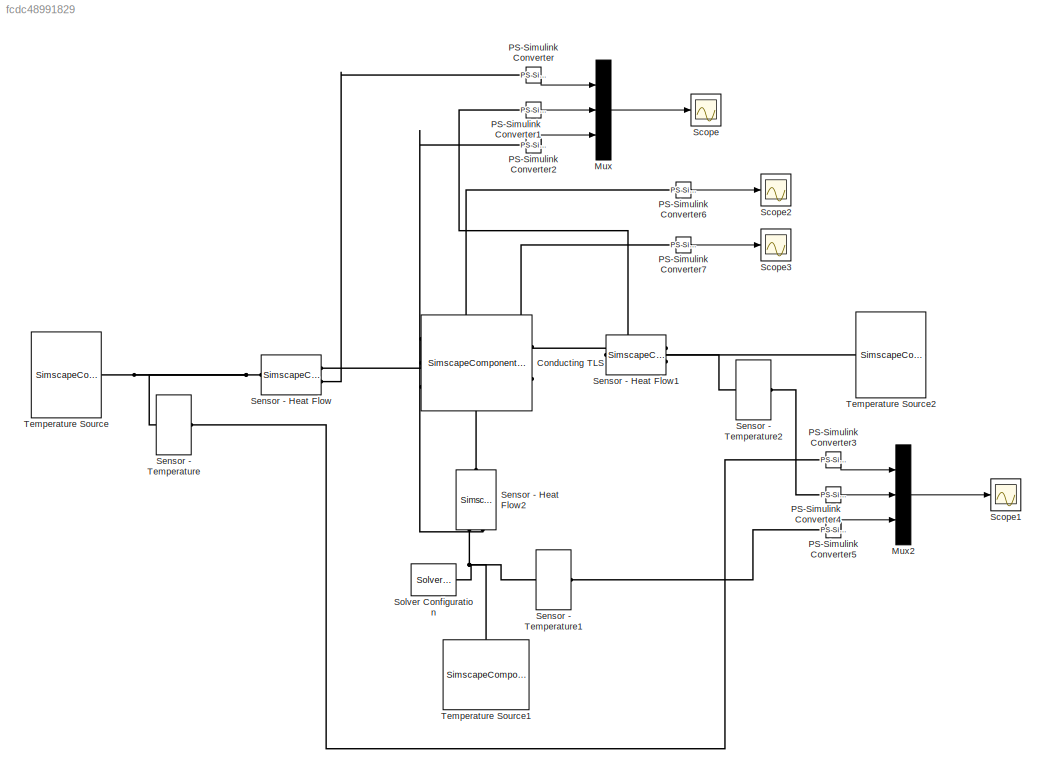
MODEL slx_fcdc48991829
KIND model
CONFIG AbsTol = auto
CONFIG EnableMultiTasking = off
CONFIG FixedStep = auto
CONFIG MaxStep = auto
CONFIG MinStep = auto
CONFIG RelTol = 1e-3
CONFIG SampleTimeConstraint = Unconstrained
CONFIG SolverName = VariableStepAuto
CONFIG StartTime = 0.0
CONFIG StopTime = 1000.0
BLOCK [SimscapeComponentBlock] Conducting TLS
  ClassName = conducting_TLS
  ComponentPath = conducting_TLS
  ComponentVariantNames = ["conducting_TLS"]
  ComponentVariants = ["conducting_TLS"]
  CopyFcn = simscape.engine.sli.internal.componentblockcallback(gcbh,'COPY')
  InternalSimscapePortConfiguration = {"Bottom":[{"id":"gnd","label":"","type":"quantum_thermal"}],"Left":[{"id":"b1","label":"B1","type":"quantum_thermal"}],"Right":[{"id":"b2","label":"B2","type":"quantum_thermal"}],"Top":[{"id":"diag","label":"dia","type":"output"},{"id":"ofdiag","label":"ofdia","type":"output"}]}
  J1 = 0
  J1_nominal_specify = off
  J1_nominal_unit = 1
  J1_nominal_value = 1
  J1_priority = None
  J1_specify = off
  J1_unit = 1
  J2 = 0
  J2_nominal_specify = off
  J2_nominal_unit = 1
  J2_nominal_value = 1
  J2_priority = None
  J2_specify = off
  J2_unit = 1
  MaskType = Conducting TLS
  Ports = [0, 0, 0, 0, 0, 3, 2]
  PreCopyFcn = simscape.engine.sli.internal.componentblockcallback(gcbh,'PRECOPY')
  PreDeleteFcn = simscape.engine.sli.internal.componentblockcallback(gcbh,'PREDELETE')
  SchemaVersion = 1
  SourceFile = conducting_TLS
  T1 = 0.2
  T1_nominal_specify = off
  T1_nominal_unit = 1
  T1_nominal_value = 1
  T1_priority = None
  T1_specify = off
  T1_unit = 1
  T2 = 0.2
  T2_nominal_specify = off
  T2_nominal_unit = 1
  T2_nominal_value = 1
  T2_priority = None
  T2_specify = off
  T2_unit = 1
  k1 = 0.01
  k1_conf = compiletime
  k1_unit = 1
  k2 = 0.01
  k2_conf = compiletime
  k2_unit = 1
  p11 = 0.5
  p11_nominal_specify = off
  p11_nominal_unit = 1
  p11_nominal_value = 1
  p11_priority = High
  p11_specify = off
  p11_unit = 1
  p22 = 0.5
  p22_nominal_specify = off
  p22_nominal_unit = 1
  p22_nominal_value = 1
  p22_priority = High
  p22_specify = off
  p22_unit = 1
  w = 1
  w_conf = compiletime
  w_unit = 1
BLOCK [Mux] Mux
  DisplayOption = bar
  Inputs = 3
  Ports = [3, 1]
BLOCK [Mux] Mux2
  DisplayOption = bar
  Inputs = 3
  Ports = [3, 1]
BLOCK [Reference] PS-Simulink Converter  REF=nesl_utility/PS-Simulink
Converter
  Ports = [0, 1, 0, 0, 0, 1]
  SourceBlock = nesl_utility/PS-Simulink\nConverter
  SourceProductBaseCode = SS,PW,VE
  SourceType = PS-Simulink\nConverter
BLOCK [Reference] PS-Simulink Converter1  REF=nesl_utility/PS-Simulink
Converter
  Ports = [0, 1, 0, 0, 0, 1]
  SourceBlock = nesl_utility/PS-Simulink\nConverter
  SourceProductBaseCode = SS,PW,VE
  SourceType = PS-Simulink\nConverter
BLOCK [Reference] PS-Simulink Converter2  REF=nesl_utility/PS-Simulink
Converter
  Ports = [0, 1, 0, 0, 0, 1]
  SourceBlock = nesl_utility/PS-Simulink\nConverter
  SourceProductBaseCode = SS,PW,VE
  SourceType = PS-Simulink\nConverter
BLOCK [Reference] PS-Simulink Converter3  REF=nesl_utility/PS-Simulink
Converter
  Ports = [0, 1, 0, 0, 0, 1]
  SourceBlock = nesl_utility/PS-Simulink\nConverter
  SourceProductBaseCode = SS,PW,VE
  SourceType = PS-Simulink\nConverter
BLOCK [Reference] PS-Simulink Converter4  REF=nesl_utility/PS-Simulink
Converter
  Ports = [0, 1, 0, 0, 0, 1]
  SourceBlock = nesl_utility/PS-Simulink\nConverter
  SourceProductBaseCode = SS,PW,VE
  SourceType = PS-Simulink\nConverter
BLOCK [Reference] PS-Simulink Converter5  REF=nesl_utility/PS-Simulink
Converter
  Ports = [0, 1, 0, 0, 0, 1]
  SourceBlock = nesl_utility/PS-Simulink\nConverter
  SourceProductBaseCode = SS,PW,VE
  SourceType = PS-Simulink\nConverter
BLOCK [Reference] PS-Simulink Converter6  REF=nesl_utility/PS-Simulink
Converter
  Ports = [0, 1, 0, 0, 0, 1]
  SourceBlock = nesl_utility/PS-Simulink\nConverter
  SourceProductBaseCode = SS,PW,VE
  SourceType = PS-Simulink\nConverter
BLOCK [Reference] PS-Simulink Converter7  REF=nesl_utility/PS-Simulink
Converter
  Ports = [0, 1, 0, 0, 0, 1]
  SourceBlock = nesl_utility/PS-Simulink\nConverter
  SourceProductBaseCode = SS,PW,VE
  SourceType = PS-Simulink\nConverter
BLOCK [Scope] Scope
  Floating = off
  NumInputPorts = 1
  Ports = [1]
  ScopeSpecificationString = Simulink.scopes.TimeScopeBlockCfg('CurrentConfiguration', extmgr.ConfigurationSet(extmgr.Configuration('Core','General UI',true),extmgr.Configuration('Core','Source UI',true),extmgr.Configuration('Sources','WiredSimulink',true),extmgr.Configuration('Visuals','Time Domain',true,'SerializedDisplays',{struct('MinYLimReal','-0.00049','MaxYLimReal','0.0002','YLabelReal','','MinYLimMag','0.00000','MaxYL...<+1821ch>
BLOCK [Scope] Scope1
  Floating = off
  NumInputPorts = 1
  Ports = [1]
  ScopeSpecificationString = Simulink.scopes.TimeScopeBlockCfg('CurrentConfiguration', extmgr.ConfigurationSet(extmgr.Configuration('Core','General UI',true),extmgr.Configuration('Core','Source UI',true),extmgr.Configuration('Sources','WiredSimulink',true,'DataLoggingVariableName','ScopeData1'),extmgr.Configuration('Visuals','Time Domain',true,'SerializedDisplays',{struct('MinYLimReal','-0.025','MaxYLimReal','0.225','YLabelRe...<+1449ch>
BLOCK [Scope] Scope2
  Floating = off
  NumInputPorts = 1
  Ports = [1]
  ScopeSpecificationString = Simulink.scopes.TimeScopeBlockCfg('CurrentConfiguration', extmgr.ConfigurationSet(extmgr.Configuration('Core','General UI',true),extmgr.Configuration('Core','Source UI',true),extmgr.Configuration('Sources','WiredSimulink',true,'DataLoggingVariableName','ScopeData2'),extmgr.Configuration('Visuals','Time Domain',true,'SerializedDisplays',{struct('MinYLimReal','-0.12079','MaxYLimReal','1.12079','YLab...<+1464ch>
BLOCK [Scope] Scope3
  Floating = off
  NumInputPorts = 1
  Ports = [1]
  ScopeSpecificationString = Simulink.scopes.TimeScopeBlockCfg('CurrentConfiguration', extmgr.ConfigurationSet(extmgr.Configuration('Core','General UI',true),extmgr.Configuration('Core','Source UI',true),extmgr.Configuration('Sources','WiredSimulink',true,'DataLoggingVariableName','ScopeData3'),extmgr.Configuration('Visuals','Time Domain',true,'SerializedDisplays',{struct('MinYLimReal','-1.00000','MaxYLimReal','1.00000','YLab...<+1409ch>
BLOCK [SimscapeComponentBlock] Sensor - Heat Flow
  ClassName = sensor_heat_flow
  ComponentPath = sensor_heat_flow
  ComponentVariantNames = ["sensor_heat_flow"]
  ComponentVariants = ["sensor_heat_flow"]
  CopyFcn = simscape.engine.sli.internal.componentblockcallback(gcbh,'COPY')
  InternalSimscapePortConfiguration = {"Bottom":[],"Left":[{"id":"inp","label":"","type":"quantum_thermal"}],"Right":[{"id":"out","label":"","type":"quantum_thermal"},{"id":"sense","label":"","type":"output"}],"Top":[]}  <repeated x3 — deduplicated; at blocks: Sensor - Heat Flow, Sensor - Heat Flow1, Sensor - Heat Flow2>
  J = 0
  J_nominal_specify = off
  J_nominal_unit = 1
  J_nominal_value = 1
  J_priority = None
  J_specify = off
  J_unit = 1
  MaskType = Heat flow rate sensor
  Ports = [0, 0, 0, 0, 0, 1, 2]
  PreCopyFcn = simscape.engine.sli.internal.componentblockcallback(gcbh,'PRECOPY')
  PreDeleteFcn = simscape.engine.sli.internal.componentblockcallback(gcbh,'PREDELETE')
  SchemaVersion = 1
  SourceFile = sensor_heat_flow
BLOCK [SimscapeComponentBlock] Sensor - Heat Flow1
  ClassName = sensor_heat_flow
  ComponentPath = sensor_heat_flow
  ComponentVariantNames = ["sensor_heat_flow"]
  ComponentVariants = ["sensor_heat_flow"]
  CopyFcn = simscape.engine.sli.internal.componentblockcallback(gcbh,'COPY')
  J = 0
  J_nominal_specify = off
  J_nominal_unit = 1
  J_nominal_value = 1
  J_priority = None
  J_specify = off
  J_unit = 1
  MaskType = Heat flow rate sensor
  NameLocation = top
  Ports = [0, 0, 0, 0, 0, 1, 2]
  PreCopyFcn = simscape.engine.sli.internal.componentblockcallback(gcbh,'PRECOPY')
  PreDeleteFcn = simscape.engine.sli.internal.componentblockcallback(gcbh,'PREDELETE')
  SchemaVersion = 1
  SourceFile = sensor_heat_flow
BLOCK [SimscapeComponentBlock] Sensor - Heat Flow2
  ClassName = sensor_heat_flow
  ComponentPath = sensor_heat_flow
  ComponentVariantNames = ["sensor_heat_flow"]
  ComponentVariants = ["sensor_heat_flow"]
  CopyFcn = simscape.engine.sli.internal.componentblockcallback(gcbh,'COPY')
  J = 0
  J_nominal_specify = off
  J_nominal_unit = 1
  J_nominal_value = 1
  J_priority = None
  J_specify = off
  J_unit = 1
  MaskType = Heat flow rate sensor
  NameLocation = right
  Ports = [0, 0, 0, 0, 0, 1, 2]
  PreCopyFcn = simscape.engine.sli.internal.componentblockcallback(gcbh,'PRECOPY')
  PreDeleteFcn = simscape.engine.sli.internal.componentblockcallback(gcbh,'PREDELETE')
  SchemaVersion = 1
  SourceFile = sensor_heat_flow
BLOCK [SimscapeComponentBlock] Sensor - Temperature
  ClassName = sensor_temperature
  ComponentPath = sensor_temperature
  ComponentVariantNames = ["sensor_temperature"]
  ComponentVariants = ["sensor_temperature"]
  CopyFcn = simscape.engine.sli.internal.componentblockcallback(gcbh,'COPY')
  InternalSimscapePortConfiguration = {"Bottom":[],"Left":[{"id":"inp","label":"","type":"quantum_thermal"}],"Right":[{"id":"sense","label":"","type":"output"}],"Top":[]}
  J = 0
  J_nominal_specify = off
  J_nominal_unit = 1
  J_nominal_value = 1
  J_priority = None
  J_specify = off
  J_unit = 1
  MaskType = Temperature sensor
  Ports = [0, 0, 0, 0, 0, 1, 1]
  PreCopyFcn = simscape.engine.sli.internal.componentblockcallback(gcbh,'PRECOPY')
  PreDeleteFcn = simscape.engine.sli.internal.componentblockcallback(gcbh,'PREDELETE')
  SchemaVersion = 1
  SourceFile = sensor_temperature
BLOCK [SimscapeComponentBlock] Sensor - Temperature1
  ClassName = sensor_temperature
  ComponentPath = sensor_temperature
  ComponentVariantNames = ["sensor_temperature"]
  ComponentVariants = ["sensor_temperature"]
  CopyFcn = simscape.engine.sli.internal.componentblockcallback(gcbh,'COPY')
  InternalSimscapePortConfiguration = {"Bottom":[],"Left":[{"id":"inp","label":"","type":"quantum_thermal"}],"Right":[{"id":"sense","label":"","type":"output"}],"Top":[]}
  J = 0
  J_nominal_specify = off
  J_nominal_unit = 1
  J_nominal_value = 1
  J_priority = None
  J_specify = off
  J_unit = 1
  MaskType = Temperature sensor
  Ports = [0, 0, 0, 0, 0, 1, 1]
  PreCopyFcn = simscape.engine.sli.internal.componentblockcallback(gcbh,'PRECOPY')
  PreDeleteFcn = simscape.engine.sli.internal.componentblockcallback(gcbh,'PREDELETE')
  SchemaVersion = 1
  SourceFile = sensor_temperature
BLOCK [SimscapeComponentBlock] Sensor - Temperature2
  ClassName = sensor_temperature
  ComponentPath = sensor_temperature
  ComponentVariantNames = ["sensor_temperature"]
  ComponentVariants = ["sensor_temperature"]
  CopyFcn = simscape.engine.sli.internal.componentblockcallback(gcbh,'COPY')
  InternalSimscapePortConfiguration = {"Bottom":[],"Left":[{"id":"inp","label":"","type":"quantum_thermal"}],"Right":[{"id":"sense","label":"","type":"output"}],"Top":[]}
  J = 0
  J_nominal_specify = off
  J_nominal_unit = 1
  J_nominal_value = 1
  J_priority = None
  J_specify = off
  J_unit = 1
  MaskType = Temperature sensor
  Ports = [0, 0, 0, 0, 0, 1, 1]
  PreCopyFcn = simscape.engine.sli.internal.componentblockcallback(gcbh,'PRECOPY')
  PreDeleteFcn = simscape.engine.sli.internal.componentblockcallback(gcbh,'PREDELETE')
  SchemaVersion = 1
  SourceFile = sensor_temperature
BLOCK [Reference] Solver Configuration  REF=nesl_utility/Solver
Configuration
  Ports = [0, 0, 0, 0, 0, 0, 1]
  SourceBlock = nesl_utility/Solver\nConfiguration
  SourceProductBaseCode = SS,PW,VE
  SourceType = Solver\nConfiguration
BLOCK [SimscapeComponentBlock] Temperature Source
  ClassName = source_temperature
  ComponentPath = source_temperature
  ComponentVariantNames = ["source_temperature"]
  ComponentVariants = ["source_temperature"]
  CopyFcn = simscape.engine.sli.internal.componentblockcallback(gcbh,'COPY')
  InternalSimscapePortConfiguration = {"Bottom":[],"Left":[],"Right":[{"id":"out","label":"","type":"quantum_thermal"}],"Top":[]}
  J = 0
  J_nominal_specify = off
  J_nominal_unit = 1
  J_nominal_value = 1
  J_priority = None
  J_specify = off
  J_unit = 1
  MaskType = Temperature source
  Ports = [0, 0, 0, 0, 0, 0, 1]
  PreCopyFcn = simscape.engine.sli.internal.componentblockcallback(gcbh,'PRECOPY')
  PreDeleteFcn = simscape.engine.sli.internal.componentblockcallback(gcbh,'PREDELETE')
  SchemaVersion = 1
  SourceFile = source_temperature
  temp = 0.2
  temp_conf = compiletime
  temp_unit = 1
BLOCK [SimscapeComponentBlock] Temperature Source1
  ClassName = source_temperature
  ComponentPath = source_temperature
  ComponentVariantNames = ["source_temperature"]
  ComponentVariants = ["source_temperature"]
  CopyFcn = simscape.engine.sli.internal.componentblockcallback(gcbh,'COPY')
  InternalSimscapePortConfiguration = {"Bottom":[],"Left":[],"Right":[{"id":"out","label":"","type":"quantum_thermal"}],"Top":[]}
  J = 0
  J_nominal_specify = off
  J_nominal_unit = 1
  J_nominal_value = 1
  J_priority = None
  J_specify = off
  J_unit = 1
  MaskType = Temperature source
  NameLocation = right
  Ports = [0, 0, 0, 0, 0, 0, 1]
  PreCopyFcn = simscape.engine.sli.internal.componentblockcallback(gcbh,'PRECOPY')
  PreDeleteFcn = simscape.engine.sli.internal.componentblockcallback(gcbh,'PREDELETE')
  SchemaVersion = 1
  SourceFile = source_temperature
  temp = 0
  temp_conf = compiletime
  temp_unit = 1
BLOCK [SimscapeComponentBlock] Temperature Source2
  ClassName = source_temperature
  ComponentPath = source_temperature
  ComponentVariantNames = ["source_temperature"]
  ComponentVariants = ["source_temperature"]
  CopyFcn = simscape.engine.sli.internal.componentblockcallback(gcbh,'COPY')
  InternalSimscapePortConfiguration = {"Bottom":[],"Left":[],"Right":[{"id":"out","label":"","type":"quantum_thermal"}],"Top":[]}
  J = 0
  J_nominal_specify = off
  J_nominal_unit = 1
  J_nominal_value = 1
  J_priority = None
  J_specify = off
  J_unit = 1
  MaskType = Temperature source
  NameLocation = top
  Ports = [0, 0, 0, 0, 0, 0, 1]
  PreCopyFcn = simscape.engine.sli.internal.componentblockcallback(gcbh,'PRECOPY')
  PreDeleteFcn = simscape.engine.sli.internal.componentblockcallback(gcbh,'PREDELETE')
  SchemaVersion = 1
  SourceFile = source_temperature
  temp = 0.02
  temp_conf = compiletime
  temp_unit = 1
LINE Mux2:1 -> Scope1:1
LINE Mux:1 -> Scope:1
LINE PS-Simulink Converter1:1 -> Mux:2
LINE PS-Simulink Converter2:1 -> Mux:3
LINE PS-Simulink Converter3:1 -> Mux2:1
LINE PS-Simulink Converter4:1 -> Mux2:2
LINE PS-Simulink Converter5:1 -> Mux2:3
LINE PS-Simulink Converter6:1 -> Scope2:1
LINE PS-Simulink Converter7:1 -> Scope3:1
LINE PS-Simulink Converter:1 -> Mux:1
PLINE Conducting TLS:LConn1 -- Sensor - Heat Flow:RConn1
PLINE Conducting TLS:LConn2 -- PS-Simulink Converter6:LConn1
PLINE Conducting TLS:LConn3 -- PS-Simulink Converter7:LConn1
PLINE Conducting TLS:RConn1 -- Sensor - Heat Flow1:RConn1
PLINE Conducting TLS:RConn2 -- Sensor - Heat Flow2:LConn1
PLINE PS-Simulink Converter1:LConn1 -- Sensor - Heat Flow1:RConn2
PLINE PS-Simulink Converter2:LConn1 -- Sensor - Heat Flow2:RConn2
PLINE PS-Simulink Converter3:LConn1 -- Sensor - Temperature:RConn1
PLINE PS-Simulink Converter4:LConn1 -- Sensor - Temperature2:RConn1
PLINE PS-Simulink Converter5:LConn1 -- Sensor - Temperature1:RConn1
PLINE PS-Simulink Converter:LConn1 -- Sensor - Heat Flow:RConn2
PNET net1: Sensor - Heat Flow1:LConn1 -- Sensor - Temperature2:LConn1 -- Temperature Source2:RConn1
PNET net2: Sensor - Heat Flow2:RConn1 -- Sensor - Temperature1:LConn1 -- Solver Configuration:RConn1 -- Temperature Source1:RConn1
PNET net3: Sensor - Heat Flow:LConn1 -- Sensor - Temperature:LConn1 -- Temperature Source:RConn1
note: PNET lines group multi-terminal physical nets as a canonical sorted terminal list (undirected conserving connections); 2-terminal nets keep the pairwise PLINE form
